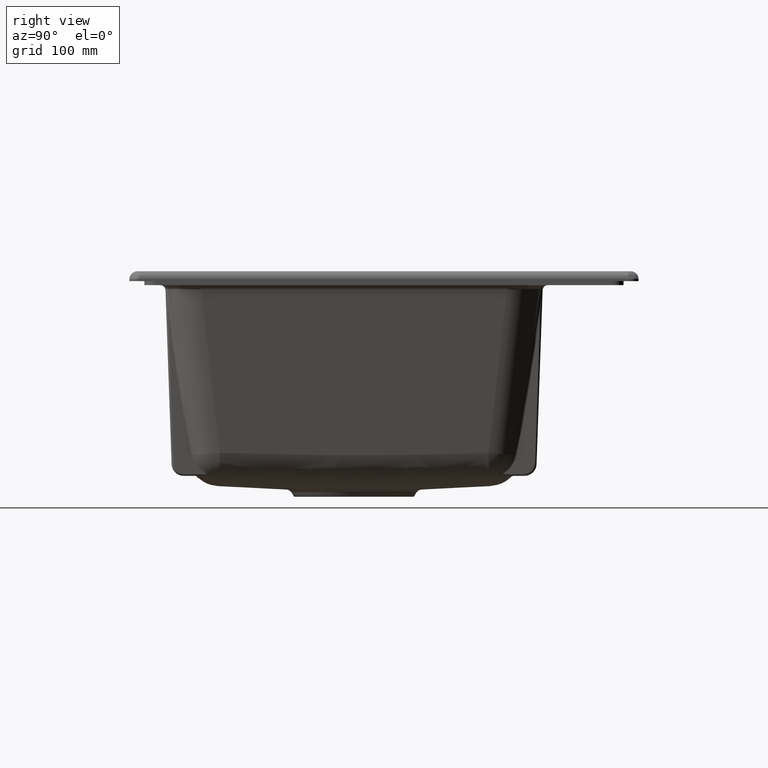
[diagram: clean part render]
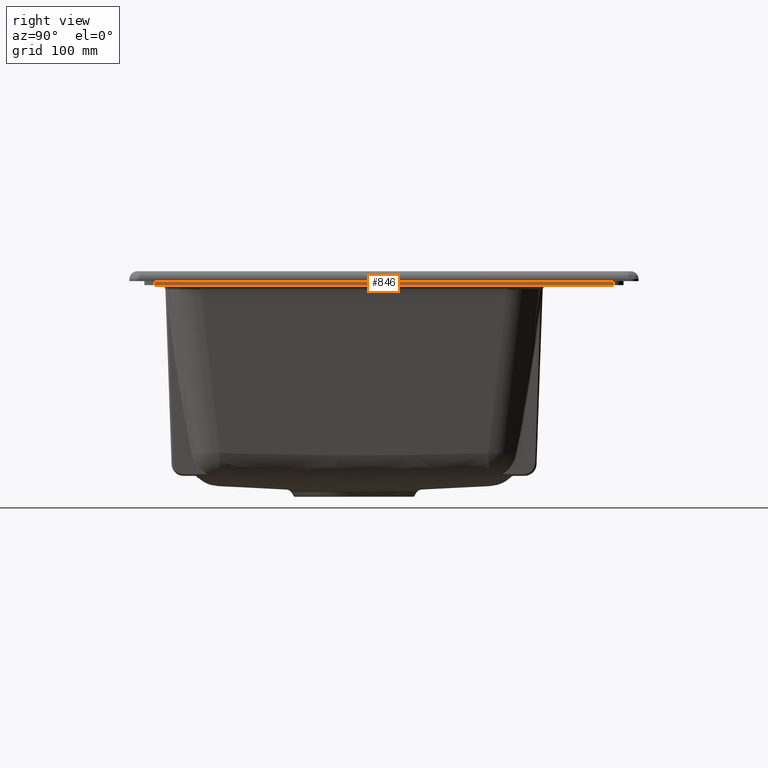
[diagram: same view with one face highlighted and labeled with its STEP entity id]
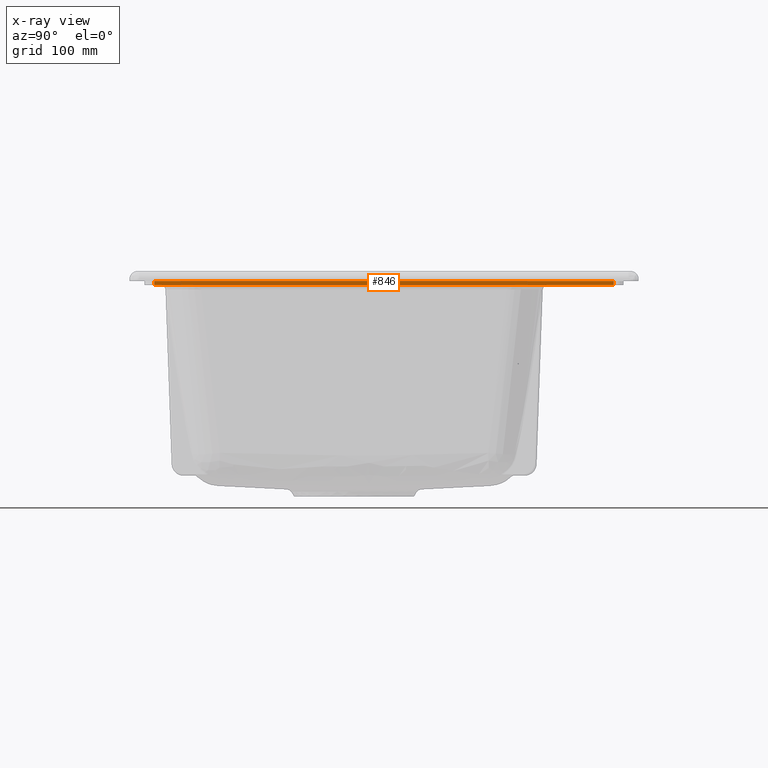
[diagram: x-ray of the same camera — body ghosted, the highlighted face saturated]
A machine part, right view. The second image highlights one B-rep face of the part: STEP entity #846.
The next image is the same camera in x-ray: the body ghosted, the highlighted face saturated — about 0% of this face is hidden behind the body in this view.
In plain terms, the highlighted planar face has unit normal (-1, 0, 0).
Its self-contained STEP definition (entity closure, byte-faithful):
#460=FACE_OUTER_BOUND('',#1193,.T.);
#846=ADVANCED_FACE('',(#460),#891,.F.);
#891=PLANE('',#3866);
#1193=EDGE_LOOP('',(#2402,#2403,#2404,#2405));
#2402=ORIENTED_EDGE('',*,*,#3238,.F.);
#2403=ORIENTED_EDGE('',*,*,#3246,.T.);
#2404=ORIENTED_EDGE('',*,*,#2735,.T.);
#2405=ORIENTED_EDGE('',*,*,#3247,.T.);
#2432=VERTEX_POINT('',#4724);
#2433=VERTEX_POINT('',#4726);
#2725=VERTEX_POINT('',#10078);
#2726=VERTEX_POINT('',#10080);
#2735=EDGE_CURVE('',#2433,#2432,#3253,.T.);
#3238=EDGE_CURVE('',#2725,#2726,#3375,.T.);
#3246=EDGE_CURVE('',#2725,#2433,#3381,.T.);
#3247=EDGE_CURVE('',#2432,#2726,#3382,.T.);
#3253=LINE('',#4725,#3388);
#3375=LINE('',#10079,#3510);
#3381=LINE('',#10093,#3516);
#3382=LINE('',#10094,#3517);
#3388=VECTOR('',#3883,1.);
#3510=VECTOR('',#4679,1.);
#3516=VECTOR('',#4695,1.);
#3517=VECTOR('',#4696,1.);
#3866=AXIS2_PLACEMENT_3D('',#10095,#4697,#4698);
#3883=DIRECTION('',(0.,1.,0.));
#4679=DIRECTION('',(0.,1.,0.));
#4695=DIRECTION('',(0.,0.,-1.));
#4696=DIRECTION('',(0.,0.,1.));
#4697=DIRECTION('',(-1.,0.,0.));
#4698=DIRECTION('',(0.,0.,-1.));
#4724=CARTESIAN_POINT('',(222.5,260.,-14.));
#4725=CARTESIAN_POINT('',(222.5,-210.031373033403,-14.));
#4726=CARTESIAN_POINT('',(222.5,-200.,-14.));
#10078=CARTESIAN_POINT('',(222.5,-200.,-10.));
#10079=CARTESIAN_POINT('',(222.5,-210.,-10.));
#10080=CARTESIAN_POINT('',(222.5,260.,-10.));
#10093=CARTESIAN_POINT('',(222.5,-200.,-10.));
#10094=CARTESIAN_POINT('',(222.5,260.,-10.));
#10095=CARTESIAN_POINT('',(222.5,-210.,-10.));